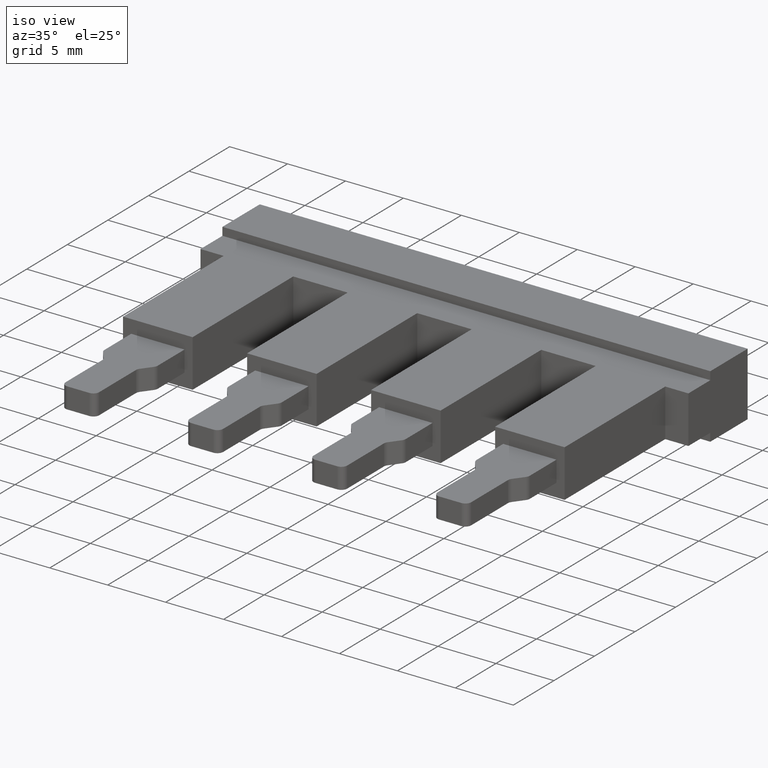
[diagram: clean part render]
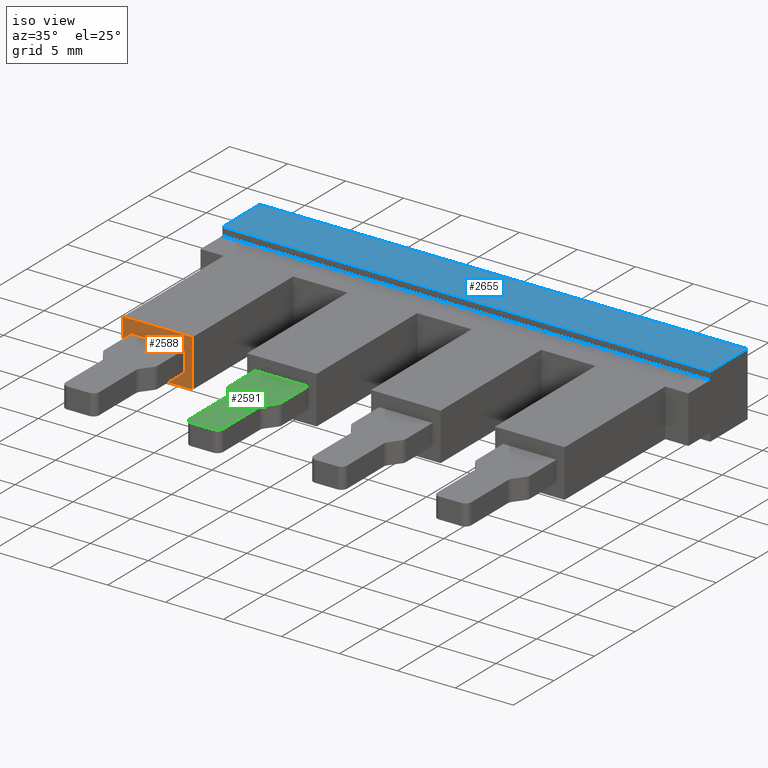
[diagram: same view with three faces highlighted in distinct colors, each labeled with its STEP entity id]
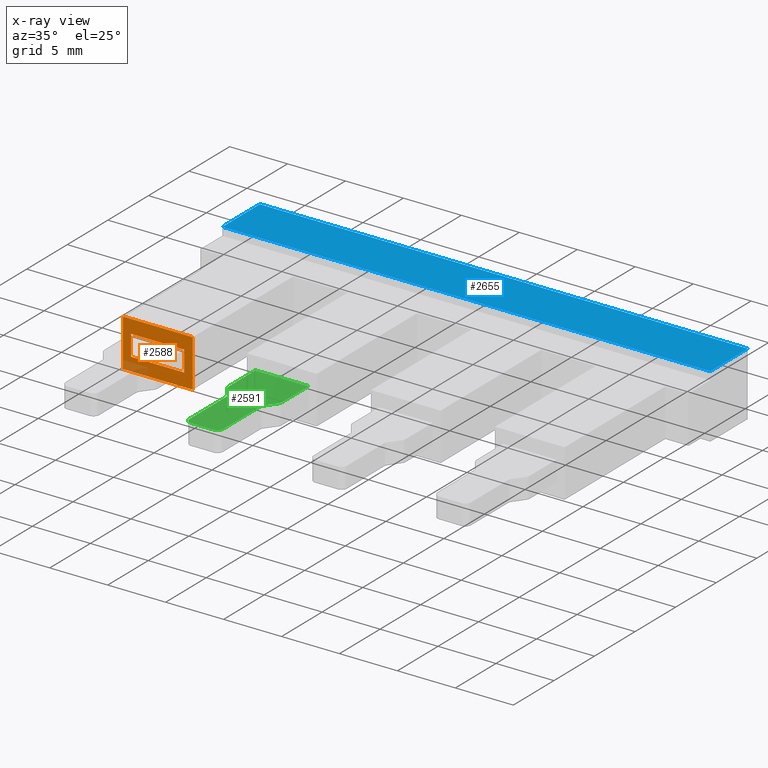
[diagram: x-ray of the same camera — body ghosted, the three highlighted faces saturated]
A machine part, iso view with three faces highlighted in distinct colors.
The next image is the same camera in x-ray (body ghosted, the three faces saturated) — at least one of them is partly hidden behind the body in this view.
Their STEP definitions:

[orange] entity #2588 — the highlighted planar face has unit normal (0, -1, 0).
#19 = LINE ( 'NONE', #20, #2203 ) ;
#20 = CARTESIAN_POINT ( 'NONE',  ( 7.299999999999999800, -12.40000000000000200, -0.8100250000000002200 ) ) ;
#46 = DIRECTION ( 'NONE',  ( 0.0000000000000000000, 0.0000000000000000000, -1.000000000000000000 ) ) ;
#49 = CARTESIAN_POINT ( 'NONE',  ( 8.000000000000001800, -12.40000000000000200, 4.100000000000000500 ) ) ;
#66 = LINE ( 'NONE', #49, #2151 ) ;
#75 = DIRECTION ( 'NONE',  ( 0.0000000000000000000, 0.0000000000000000000, 1.000000000000000000 ) ) ;
#175 = DIRECTION ( 'NONE',  ( 0.0000000000000000000, -1.000000000000000000, 0.0000000000000000000 ) ) ;
#182 = FACE_OUTER_BOUND ( 'NONE', #1486, .T. ) ;
#194 = CARTESIAN_POINT ( 'NONE',  ( 0.0000000000000000000, -12.40000000000000200, -0.8100250000000002200 ) ) ;
#197 = FACE_BOUND ( 'NONE', #1499, .T. ) ;
#204 = PLANE ( 'NONE',  #2215 ) ;
#205 = DIRECTION ( 'NONE',  ( 0.0000000000000000000, -0.0000000000000000000, -1.000000000000000000 ) ) ;
#612 = DIRECTION ( 'NONE',  ( -1.000000000000000000, 0.0000000000000000000, 0.0000000000000000000 ) ) ;
#621 = CARTESIAN_POINT ( 'NONE',  ( 0.0000000000000000000, -12.40000000000000200, 4.099999999999999600 ) ) ;
#640 = LINE ( 'NONE', #621, #2011 ) ;
#657 = LINE ( 'NONE', #660, #2077 ) ;
#660 = CARTESIAN_POINT ( 'NONE',  ( 2.699999999999999700, -12.40000000000000200, -0.8100250000000002200 ) ) ;
#683 = DIRECTION ( 'NONE',  ( 0.0000000000000000000, 0.0000000000000000000, 1.000000000000000000 ) ) ;
#689 = CARTESIAN_POINT ( 'NONE',  ( 2.000000000000000000, -12.40000000000000200, 4.100000000000000500 ) ) ;
#699 = DIRECTION ( 'NONE',  ( 0.0000000000000000000, 0.0000000000000000000, -1.000000000000000000 ) ) ;
#726 = LINE ( 'NONE', #689, #2057 ) ;
#796 = LINE ( 'NONE', #864, #2142 ) ;
#829 = DIRECTION ( 'NONE',  ( 1.000000000000000000, 0.0000000000000000000, 0.0000000000000000000 ) ) ;
#864 = CARTESIAN_POINT ( 'NONE',  ( 18.69999999999999600, -12.40000000000000200, 0.0000000000000000000 ) ) ;
#868 = CARTESIAN_POINT ( 'NONE',  ( 3.544893281391139400E-016, -12.40000000000000200, 2.950000000000000200 ) ) ;
#902 = LINE ( 'NONE', #905, #2103 ) ;
#905 = CARTESIAN_POINT ( 'NONE',  ( -1.108728711196108600E-015, -12.40000000000000200, 1.149999999999975700 ) ) ;
#906 = LINE ( 'NONE', #868, #2176 ) ;
#908 = DIRECTION ( 'NONE',  ( -1.000000000000000000, 0.0000000000000000000, -5.656706986880892600E-016 ) ) ;
#923 = DIRECTION ( 'NONE',  ( 1.000000000000000000, 0.0000000000000000000, -9.427844978134822700E-017 ) ) ;
#1018 = CARTESIAN_POINT ( 'NONE',  ( 2.000000000000001800, -12.40000000000000200, 0.0000000000000000000 ) ) ;
#1026 = CARTESIAN_POINT ( 'NONE',  ( 8.000000000000001800, -12.40000000000000200, 4.100000000000000500 ) ) ;
#1043 = CARTESIAN_POINT ( 'NONE',  ( 2.000000000000000000, -12.40000000000000200, 4.100000000000000500 ) ) ;
#1087 = CARTESIAN_POINT ( 'NONE',  ( 2.699999999999999700, -12.40000000000000200, 2.949999999999999700 ) ) ;
#1093 = CARTESIAN_POINT ( 'NONE',  ( 8.000000000000000000, -12.40000000000000200, 0.0000000000000000000 ) ) ;
#1109 = CARTESIAN_POINT ( 'NONE',  ( 2.699999999999999700, -12.40000000000000200, 1.149999999999979500 ) ) ;
#1143 = CARTESIAN_POINT ( 'NONE',  ( 7.299999999999999800, -12.40000000000000200, 1.149999999999979900 ) ) ;
#1150 = CARTESIAN_POINT ( 'NONE',  ( 7.299999999999998900, -12.40000000000000200, 2.949999999999999300 ) ) ;
#1327 = VERTEX_POINT ( 'NONE', #1026 ) ;
#1335 = VERTEX_POINT ( 'NONE', #1018 ) ;
#1352 = VERTEX_POINT ( 'NONE', #1043 ) ;
#1375 = VERTEX_POINT ( 'NONE', #1109 ) ;
#1382 = VERTEX_POINT ( 'NONE', #1093 ) ;
#1417 = VERTEX_POINT ( 'NONE', #1087 ) ;
#1460 = VERTEX_POINT ( 'NONE', #1143 ) ;
#1478 = VERTEX_POINT ( 'NONE', #1150 ) ;
#1486 = EDGE_LOOP ( 'NONE', ( #1662, #1641, #1645, #1620 ) ) ;
#1499 = EDGE_LOOP ( 'NONE', ( #1651, #1648, #1649, #1659 ) ) ;
#1620 = ORIENTED_EDGE ( 'NONE', *, *, #2551, .T. ) ;
#1641 = ORIENTED_EDGE ( 'NONE', *, *, #2448, .T. ) ;
#1645 = ORIENTED_EDGE ( 'NONE', *, *, #2492, .T. ) ;
#1648 = ORIENTED_EDGE ( 'NONE', *, *, #2519, .T. ) ;
#1649 = ORIENTED_EDGE ( 'NONE', *, *, #2539, .T. ) ;
#1651 = ORIENTED_EDGE ( 'NONE', *, *, #2435, .T. ) ;
#1659 = ORIENTED_EDGE ( 'NONE', *, *, #2518, .T. ) ;
#1662 = ORIENTED_EDGE ( 'NONE', *, *, #2422, .T. ) ;
#2011 = VECTOR ( 'NONE', #612, 1000.000000000000000 ) ;
#2057 = VECTOR ( 'NONE', #699, 1000.000000000000000 ) ;
#2077 = VECTOR ( 'NONE', #683, 1000.000000000000000 ) ;
#2103 = VECTOR ( 'NONE', #908, 1000.000000000000000 ) ;
#2142 = VECTOR ( 'NONE', #829, 1000.000000000000000 ) ;
#2151 = VECTOR ( 'NONE', #75, 1000.000000000000000 ) ;
#2176 = VECTOR ( 'NONE', #923, 1000.000000000000000 ) ;
#2203 = VECTOR ( 'NONE', #46, 1000.000000000000000 ) ;
#2215 = AXIS2_PLACEMENT_3D ( 'NONE', #194, #175, #205 ) ;
#2422 = EDGE_CURVE ( 'NONE', #1327, #1352, #640, .T. ) ;
#2435 = EDGE_CURVE ( 'NONE', #1375, #1417, #657, .T. ) ;
#2448 = EDGE_CURVE ( 'NONE', #1352, #1335, #726, .T. ) ;
#2492 = EDGE_CURVE ( 'NONE', #1335, #1382, #796, .T. ) ;
#2518 = EDGE_CURVE ( 'NONE', #1460, #1375, #902, .T. ) ;
#2519 = EDGE_CURVE ( 'NONE', #1417, #1478, #906, .T. ) ;
#2539 = EDGE_CURVE ( 'NONE', #1478, #1460, #19, .T. ) ;
#2551 = EDGE_CURVE ( 'NONE', #1382, #1327, #66, .T. ) ;
#2588 = ADVANCED_FACE ( 'NONE', ( #197, #182 ), #204, .T. ) ;

[blue] entity #2655 — the highlighted planar face has unit normal (0, 0, 1).
#429 = DIRECTION ( 'NONE',  ( 1.000000000000000000, 0.0000000000000000000, -0.0000000000000000000 ) ) ;
#446 = CARTESIAN_POINT ( 'NONE',  ( -10.70000000000000300, 7.299999999999993600, 4.799999999999999800 ) ) ;
#449 = FACE_OUTER_BOUND ( 'NONE', #1495, .T. ) ;
#450 = DIRECTION ( 'NONE',  ( 0.0000000000000000000, 0.0000000000000000000, 1.000000000000000000 ) ) ;
#455 = PLANE ( 'NONE',  #2308 ) ;
#610 = DIRECTION ( 'NONE',  ( -2.409338161078894500E-017, -1.000000000000000000, 0.0000000000000000000 ) ) ;
#619 = LINE ( 'NONE', #622, #1985 ) ;
#620 = LINE ( 'NONE', #648, #2047 ) ;
#622 = CARTESIAN_POINT ( 'NONE',  ( 0.0000000000000000000, 7.299999999999999800, 4.799999999999999800 ) ) ;
#648 = CARTESIAN_POINT ( 'NONE',  ( 31.39999999999999900, 2.700000000000005100, 4.799999999999999800 ) ) ;
#650 = DIRECTION ( 'NONE',  ( 1.000000000000000000, 2.775557561562890400E-016, 0.0000000000000000000 ) ) ;
#962 = CARTESIAN_POINT ( 'NONE',  ( -1.108295554096292100E-016, 2.699999999999997500, 4.799999999999999800 ) ) ;
#1020 = CARTESIAN_POINT ( 'NONE',  ( 42.09999999999999400, 2.700000000000006800, 4.799999999999999800 ) ) ;
#1140 = LINE ( 'NONE', #1162, #1992 ) ;
#1158 = DIRECTION ( 'NONE',  ( -3.016491377670779700E-016, 1.000000000000000000, 0.0000000000000000000 ) ) ;
#1162 = CARTESIAN_POINT ( 'NONE',  ( 42.09999999999999400, 7.300000000000006000, 4.799999999999999800 ) ) ;
#1188 = LINE ( 'NONE', #1234, #2015 ) ;
#1234 = CARTESIAN_POINT ( 'NONE',  ( -10.70000000000000300, 7.299999999999993600, 4.799999999999999800 ) ) ;
#1240 = DIRECTION ( 'NONE',  ( -1.000000000000000000, -2.775557561562890400E-016, 0.0000000000000000000 ) ) ;
#1290 = VERTEX_POINT ( 'NONE', #962 ) ;
#1295 = VERTEX_POINT ( 'NONE', #1472 ) ;
#1296 = VERTEX_POINT ( 'NONE', #1465 ) ;
#1324 = VERTEX_POINT ( 'NONE', #1020 ) ;
#1465 = CARTESIAN_POINT ( 'NONE',  ( 42.09999999999999400, 7.300000000000006000, 4.799999999999999800 ) ) ;
#1472 = CARTESIAN_POINT ( 'NONE',  ( 0.0000000000000000000, 7.299999999999999800, 4.799999999999999800 ) ) ;
#1495 = EDGE_LOOP ( 'NONE', ( #1963, #1872, #1903, #1866 ) ) ;
#1866 = ORIENTED_EDGE ( 'NONE', *, *, #2418, .T. ) ;
#1872 = ORIENTED_EDGE ( 'NONE', *, *, #2374, .T. ) ;
#1903 = ORIENTED_EDGE ( 'NONE', *, *, #2392, .T. ) ;
#1963 = ORIENTED_EDGE ( 'NONE', *, *, #2431, .T. ) ;
#1985 = VECTOR ( 'NONE', #610, 1000.000000000000000 ) ;
#1992 = VECTOR ( 'NONE', #1158, 1000.000000000000000 ) ;
#2015 = VECTOR ( 'NONE', #1240, 1000.000000000000000 ) ;
#2047 = VECTOR ( 'NONE', #650, 1000.000000000000000 ) ;
#2308 = AXIS2_PLACEMENT_3D ( 'NONE', #446, #450, #429 ) ;
#2374 = EDGE_CURVE ( 'NONE', #1324, #1296, #1140, .T. ) ;
#2392 = EDGE_CURVE ( 'NONE', #1296, #1295, #1188, .T. ) ;
#2418 = EDGE_CURVE ( 'NONE', #1295, #1290, #619, .T. ) ;
#2431 = EDGE_CURVE ( 'NONE', #1290, #1324, #620, .T. ) ;
#2655 = ADVANCED_FACE ( 'NONE', ( #449 ), #455, .T. ) ;

[green] entity #2591 — the highlighted planar face has unit normal (-0, 0, -1).
#10 = CARTESIAN_POINT ( 'NONE',  ( 16.64999999999999900, -21.69999999999998900, 2.949999999999999300 ) ) ;
#11 = DIRECTION ( 'NONE',  ( -0.0000000000000000000, 1.665334536937734800E-016, -1.000000000000000000 ) ) ;
#13 = DIRECTION ( 'NONE',  ( 0.0000000000000000000, -1.000000000000000000, 0.0000000000000000000 ) ) ;
#15 = DIRECTION ( 'NONE',  ( -1.000000000000000000, 0.0000000000000000000, 0.0000000000000000000 ) ) ;
#23 = DIRECTION ( 'NONE',  ( 0.6000000000001560800, 0.7999999999998829200, -0.0000000000000000000 ) ) ;
#24 = CARTESIAN_POINT ( 'NONE',  ( 17.64999999999966500, -17.16666666666699800, 2.949999999999999300 ) ) ;
#25 = CARTESIAN_POINT ( 'NONE',  ( 17.14999999999966500, -2.699999999999992200, 2.949999999999999300 ) ) ;
#31 = LINE ( 'NONE', #33, #2164 ) ;
#33 = CARTESIAN_POINT ( 'NONE',  ( 17.89999999999999900, -16.00000000000024200, 2.949999999999999700 ) ) ;
#38 = DIRECTION ( 'NONE',  ( 0.0000000000000000000, 0.0000000000000000000, -1.000000000000000000 ) ) ;
#44 = DIRECTION ( 'NONE',  ( -0.0000000000000000000, -1.000000000000000000, -0.0000000000000000000 ) ) ;
#55 = CARTESIAN_POINT ( 'NONE',  ( 17.49999999999999600, -15.70000000000024400, 2.949999999999999300 ) ) ;
#65 = DIRECTION ( 'NONE',  ( 1.000000000000000000, 0.0000000000000000000, 0.0000000000000000000 ) ) ;
#73 = DIRECTION ( 'NONE',  ( -0.0000000000000000000, -0.0000000000000000000, -1.000000000000000000 ) ) ;
#124 = DIRECTION ( 'NONE',  ( 1.000000000000000000, 0.0000000000000000000, -9.427844978134822700E-017 ) ) ;
#129 = DIRECTION ( 'NONE',  ( 0.0000000000000000000, 1.000000000000000000, 0.0000000000000000000 ) ) ;
#133 = CARTESIAN_POINT ( 'NONE',  ( -1.329309590057499600, -12.40000000000000200, 2.950000000000001100 ) ) ;
#142 = CARTESIAN_POINT ( 'NONE',  ( 13.39999999999999900, -2.699999999999992200, 2.949999999999999700 ) ) ;
#164 = LINE ( 'NONE', #142, #2266 ) ;
#166 = LINE ( 'NONE', #133, #2254 ) ;
#183 = DIRECTION ( 'NONE',  ( -1.000000000000000000, 0.0000000000000000000, 9.427844978134822700E-017 ) ) ;
#184 = CARTESIAN_POINT ( 'NONE',  ( 13.39999999999999900, -22.19999999999999600, 2.949999999999999700 ) ) ;
#185 = DIRECTION ( 'NONE',  ( -1.000000000000000000, 0.0000000000000000000, 9.427844978134822700E-017 ) ) ;
#188 = DIRECTION ( 'NONE',  ( 0.0000000000000000000, 1.000000000000000000, 0.0000000000000000000 ) ) ;
#190 = CARTESIAN_POINT ( 'NONE',  ( 14.24999999999999800, -2.699999999999992200, 2.949999999999999700 ) ) ;
#201 = FACE_OUTER_BOUND ( 'NONE', #1538, .T. ) ;
#202 = DIRECTION ( 'NONE',  ( -9.427844978134822700E-017, 0.0000000000000000000, -1.000000000000000000 ) ) ;
#213 = PLANE ( 'NONE',  #2267 ) ;
#218 = CARTESIAN_POINT ( 'NONE',  ( 13.39999999999999900, -2.699999999999992200, 2.949999999999999700 ) ) ;
#219 = LINE ( 'NONE', #184, #2234 ) ;
#221 = LINE ( 'NONE', #190, #2271 ) ;
#237 = CARTESIAN_POINT ( 'NONE',  ( 18.00000000000000400, -2.699999999999992200, 2.949999999999999300 ) ) ;
#243 = LINE ( 'NONE', #237, #2274 ) ;
#254 = DIRECTION ( 'NONE',  ( -0.0000000000000000000, -1.000000000000000000, -0.0000000000000000000 ) ) ;
#643 = LINE ( 'NONE', #644, #2052 ) ;
#644 = CARTESIAN_POINT ( 'NONE',  ( 13.50000000000010100, -16.00000000000024200, 2.949999999999999700 ) ) ;
#676 = DIRECTION ( 'NONE',  ( 0.6000000000001560800, -0.7999999999998829200, -0.0000000000000000000 ) ) ;
#871 = CARTESIAN_POINT ( 'NONE',  ( 14.75000000000007800, -21.69999999999998900, 2.949999999999999700 ) ) ;
#875 = CARTESIAN_POINT ( 'NONE',  ( 13.89999999999999900, -15.70000000000010900, 2.949999999999999700 ) ) ;
#882 = DIRECTION ( 'NONE',  ( 0.0000000000000000000, 0.0000000000000000000, -1.000000000000000000 ) ) ;
#886 = DIRECTION ( 'NONE',  ( 0.0000000000000000000, 0.0000000000000000000, -1.000000000000000000 ) ) ;
#892 = DIRECTION ( 'NONE',  ( -1.000000000000000000, 0.0000000000000000000, 0.0000000000000000000 ) ) ;
#899 = DIRECTION ( 'NONE',  ( -1.000000000000000000, 0.0000000000000000000, 0.0000000000000000000 ) ) ;
#909 = DIRECTION ( 'NONE',  ( -0.0000000000000000000, -0.0000000000000000000, -1.000000000000000000 ) ) ;
#912 = DIRECTION ( 'NONE',  ( 1.000000000000000000, 0.0000000000000000000, 0.0000000000000000000 ) ) ;
#921 = LINE ( 'NONE', #25, #2161 ) ;
#928 = CARTESIAN_POINT ( 'NONE',  ( 13.75000000000022000, -17.16666666666671800, 2.949999999999999700 ) ) ;
#1047 = CARTESIAN_POINT ( 'NONE',  ( 13.50000000000005700, -16.00000000000018800, 2.949999999999999700 ) ) ;
#1057 = CARTESIAN_POINT ( 'NONE',  ( 14.25000000000011000, -17.16666666666673200, 2.949999999999999700 ) ) ;
#1062 = CARTESIAN_POINT ( 'NONE',  ( 17.24999999999972300, -16.86666666666692300, 2.949999999999999300 ) ) ;
#1089 = CARTESIAN_POINT ( 'NONE',  ( 13.39999999999999900, -15.70000000000010900, 2.949999999999999700 ) ) ;
#1092 = CARTESIAN_POINT ( 'NONE',  ( 17.14999999999983200, -21.69999999999998900, 2.949999999999999300 ) ) ;
#1108 = CARTESIAN_POINT ( 'NONE',  ( 17.14999999999966500, -17.16666666666701600, 2.949999999999999300 ) ) ;
#1112 = CARTESIAN_POINT ( 'NONE',  ( 14.75000000000007800, -22.19999999999999600, 2.949999999999999700 ) ) ;
#1113 = CARTESIAN_POINT ( 'NONE',  ( 13.39999999999999900, -12.40000000000000200, 2.949999999999999700 ) ) ;
#1123 = CARTESIAN_POINT ( 'NONE',  ( 16.64999999999999900, -22.19999999999999600, 2.949999999999999300 ) ) ;
#1124 = CARTESIAN_POINT ( 'NONE',  ( 17.89999999999994500, -16.00000000000032000, 2.949999999999999300 ) ) ;
#1133 = CARTESIAN_POINT ( 'NONE',  ( 14.15000000000016200, -16.86666666666664200, 2.949999999999999700 ) ) ;
#1134 = CARTESIAN_POINT ( 'NONE',  ( 18.00000000000000400, -12.40000000000000200, 2.949999999999999300 ) ) ;
#1166 = CARTESIAN_POINT ( 'NONE',  ( 14.24999999999999800, -21.69999999999998900, 2.949999999999999700 ) ) ;
#1178 = CARTESIAN_POINT ( 'NONE',  ( 18.00000000000000400, -15.70000000000024400, 2.949999999999999300 ) ) ;
#1356 = VERTEX_POINT ( 'NONE', #1047 ) ;
#1361 = VERTEX_POINT ( 'NONE', #1057 ) ;
#1363 = VERTEX_POINT ( 'NONE', #1062 ) ;
#1371 = VERTEX_POINT ( 'NONE', #1123 ) ;
#1374 = VERTEX_POINT ( 'NONE', #1108 ) ;
#1394 = VERTEX_POINT ( 'NONE', #1112 ) ;
#1395 = VERTEX_POINT ( 'NONE', #1133 ) ;
#1408 = VERTEX_POINT ( 'NONE', #1124 ) ;
#1409 = VERTEX_POINT ( 'NONE', #1134 ) ;
#1414 = VERTEX_POINT ( 'NONE', #1113 ) ;
#1416 = VERTEX_POINT ( 'NONE', #1092 ) ;
#1419 = VERTEX_POINT ( 'NONE', #1089 ) ;
#1449 = VERTEX_POINT ( 'NONE', #1178 ) ;
#1476 = VERTEX_POINT ( 'NONE', #1166 ) ;
#1538 = EDGE_LOOP ( 'NONE', ( #1819, #1734, #1758, #1828, #1805, #1754, #1773, #1770, #1769, #1820, #1814, #1742, #1833, #1767 ) ) ;
#1734 = ORIENTED_EDGE ( 'NONE', *, *, #2511, .F. ) ;
#1742 = ORIENTED_EDGE ( 'NONE', *, *, #2552, .F. ) ;
#1754 = ORIENTED_EDGE ( 'NONE', *, *, #2513, .F. ) ;
#1758 = ORIENTED_EDGE ( 'NONE', *, *, #2442, .T. ) ;
#1767 = ORIENTED_EDGE ( 'NONE', *, *, #2575, .F. ) ;
#1769 = ORIENTED_EDGE ( 'NONE', *, *, #2534, .F. ) ;
#1770 = ORIENTED_EDGE ( 'NONE', *, *, #2547, .F. ) ;
#1773 = ORIENTED_EDGE ( 'NONE', *, *, #2592, .F. ) ;
#1805 = ORIENTED_EDGE ( 'NONE', *, *, #2596, .F. ) ;
#1814 = ORIENTED_EDGE ( 'NONE', *, *, #2536, .T. ) ;
#1819 = ORIENTED_EDGE ( 'NONE', *, *, #2580, .F. ) ;
#1820 = ORIENTED_EDGE ( 'NONE', *, *, #2542, .T. ) ;
#1828 = ORIENTED_EDGE ( 'NONE', *, *, #2530, .T. ) ;
#1833 = ORIENTED_EDGE ( 'NONE', *, *, #2609, .F. ) ;
#2052 = VECTOR ( 'NONE', #676, 1000.000000000000100 ) ;
#2119 = CIRCLE ( 'NONE', #2145, 0.5000000000000004400 ) ;
#2145 = AXIS2_PLACEMENT_3D ( 'NONE', #875, #882, #892 ) ;
#2146 = CIRCLE ( 'NONE', #2150, 0.5000000000000282000 ) ;
#2150 = AXIS2_PLACEMENT_3D ( 'NONE', #871, #886, #899 ) ;
#2161 = VECTOR ( 'NONE', #44, 1000.000000000000000 ) ;
#2164 = VECTOR ( 'NONE', #23, 1000.000000000000100 ) ;
#2168 = CIRCLE ( 'NONE', #2204, 0.5000000000000004400 ) ;
#2169 = AXIS2_PLACEMENT_3D ( 'NONE', #928, #909, #912 ) ;
#2179 = CIRCLE ( 'NONE', #2169, 0.5000000000000004400 ) ;
#2190 = CIRCLE ( 'NONE', #2194, 0.5000000000000004400 ) ;
#2194 = AXIS2_PLACEMENT_3D ( 'NONE', #55, #73, #65 ) ;
#2204 = AXIS2_PLACEMENT_3D ( 'NONE', #24, #38, #15 ) ;
#2211 = CIRCLE ( 'NONE', #2212, 0.5000000000000282000 ) ;
#2212 = AXIS2_PLACEMENT_3D ( 'NONE', #10, #11, #13 ) ;
#2234 = VECTOR ( 'NONE', #185, 1000.000000000000000 ) ;
#2254 = VECTOR ( 'NONE', #124, 1000.000000000000000 ) ;
#2266 = VECTOR ( 'NONE', #129, 1000.000000000000000 ) ;
#2267 = AXIS2_PLACEMENT_3D ( 'NONE', #218, #202, #183 ) ;
#2271 = VECTOR ( 'NONE', #188, 1000.000000000000000 ) ;
#2274 = VECTOR ( 'NONE', #254, 1000.000000000000000 ) ;
#2442 = EDGE_CURVE ( 'NONE', #1356, #1395, #643, .T. ) ;
#2511 = EDGE_CURVE ( 'NONE', #1356, #1419, #2119, .T. ) ;
#2513 = EDGE_CURVE ( 'NONE', #1394, #1476, #2146, .T. ) ;
#2530 = EDGE_CURVE ( 'NONE', #1395, #1361, #2179, .T. ) ;
#2534 = EDGE_CURVE ( 'NONE', #1374, #1416, #921, .T. ) ;
#2536 = EDGE_CURVE ( 'NONE', #1363, #1408, #31, .T. ) ;
#2542 = EDGE_CURVE ( 'NONE', #1374, #1363, #2168, .T. ) ;
#2547 = EDGE_CURVE ( 'NONE', #1416, #1371, #2211, .T. ) ;
#2552 = EDGE_CURVE ( 'NONE', #1449, #1408, #2190, .T. ) ;
#2575 = EDGE_CURVE ( 'NONE', #1414, #1409, #166, .T. ) ;
#2580 = EDGE_CURVE ( 'NONE', #1419, #1414, #164, .T. ) ;
#2591 = ADVANCED_FACE ( 'NONE', ( #201 ), #213, .F. ) ;
#2592 = EDGE_CURVE ( 'NONE', #1371, #1394, #219, .T. ) ;
#2596 = EDGE_CURVE ( 'NONE', #1476, #1361, #221, .T. ) ;
#2609 = EDGE_CURVE ( 'NONE', #1409, #1449, #243, .T. ) ;